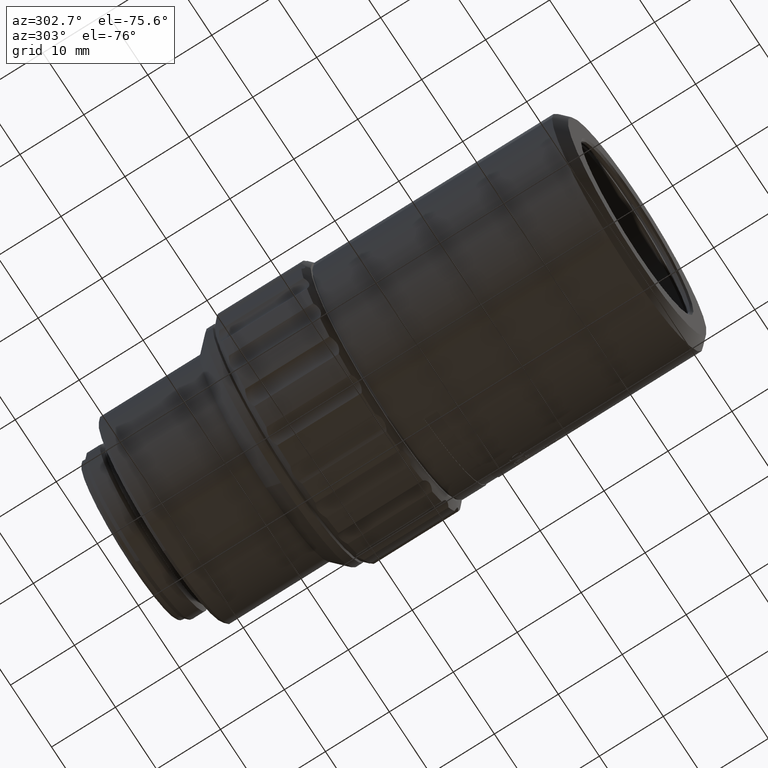
[diagram: clean part render]
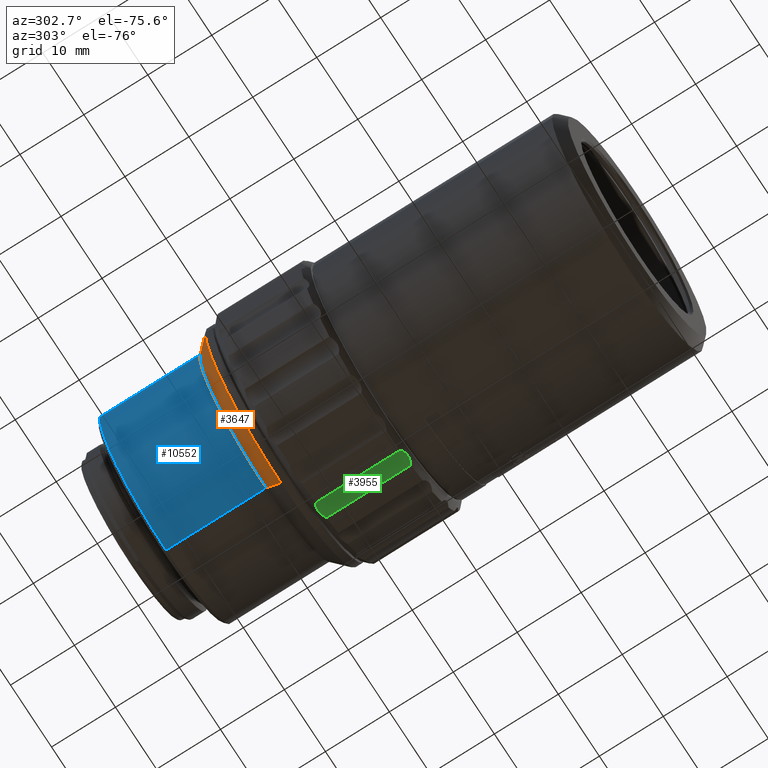
[diagram: same view with three faces highlighted in distinct colors, each labeled with its STEP entity id]
A machine part, auxiliary view with three faces highlighted in distinct colors.
Their STEP definitions:

[orange] entity #3647 — the highlighted conical surface has half-angle 45 deg.
#1270 = AXIS2_PLACEMENT_3D ( 'NONE', #3921, #18951, #17645 ) ;
#2942 = EDGE_CURVE ( 'NONE', #4403, #18064, #17333, .T. ) ;
#3084 = AXIS2_PLACEMENT_3D ( 'NONE', #7701, #15607, #4797 ) ;
#3352 = CARTESIAN_POINT ( 'NONE',  ( 0.000000000000000000, 56.95401716500989409, 16.15000000000000213 ) ) ;
#3584 = CARTESIAN_POINT ( 'NONE',  ( 0.000000000000000000, 54.60401716500999925, 18.49999999999990408 ) ) ;
#3647 = ADVANCED_FACE ( 'NONE', ( #8027 ), #9914, .T. ) ;
#3921 = CARTESIAN_POINT ( 'NONE',  ( 0.000000000000000000, 55.77901716500990403, 0.000000000000000000 ) ) ;
#4403 = VERTEX_POINT ( 'NONE', #3352 ) ;
#4797 = DIRECTION ( 'NONE',  ( 1.000000000000000000, 0.000000000000000000, 0.000000000000000000 ) ) ;
#5024 = AXIS2_PLACEMENT_3D ( 'NONE', #8239, #14337, #18958 ) ;
#5277 = DIRECTION ( 'NONE',  ( -8.659560562354926695E-17, -0.7071067811865480168, -0.7071067811865470176 ) ) ;
#5600 = CIRCLE ( 'NONE', #3084, 18.50000000000000000 ) ;
#6189 = CARTESIAN_POINT ( 'NONE',  ( 1.977804580622975561E-15, 56.95401716500989409, -16.15000000000000213 ) ) ;
#6697 = CARTESIAN_POINT ( 'NONE',  ( -2.121700579522789282E-15, 55.77901716500990403, -17.32499999999999929 ) ) ;
#7701 = CARTESIAN_POINT ( 'NONE',  ( 0.000000000000000000, 54.60401716500999925, 0.000000000000000000 ) ) ;
#8027 = FACE_OUTER_BOUND ( 'NONE', #15687, .T. ) ;
#8239 = CARTESIAN_POINT ( 'NONE',  ( 0.000000000000000000, 56.95401716500989409, 0.000000000000000000 ) ) ;
#8460 = EDGE_CURVE ( 'NONE', #13481, #8736, #11674, .T. ) ;
#8736 = VERTEX_POINT ( 'NONE', #9862 ) ;
#9862 = CARTESIAN_POINT ( 'NONE',  ( -2.265596578422591563E-15, 54.60401716500999925, -18.49999999999990408 ) ) ;
#9914 = CONICAL_SURFACE ( 'NONE', #1270, 17.32499999999999929, 0.7853981633974476129 ) ;
#10173 = EDGE_CURVE ( 'NONE', #13481, #4403, #14281, .T. ) ;
#11112 = DIRECTION ( 'NONE',  ( 0.000000000000000000, -0.7071067811865480168, 0.7071067811865470176 ) ) ;
#11674 = LINE ( 'NONE', #6697, #16868 ) ;
#11924 = VECTOR ( 'NONE', #11112, 1000.000000000000000 ) ;
#12071 = ORIENTED_EDGE ( 'NONE', *, *, #16749, .T. ) ;
#12237 = ORIENTED_EDGE ( 'NONE', *, *, #10173, .F. ) ;
#13481 = VERTEX_POINT ( 'NONE', #6189 ) ;
#13660 = ORIENTED_EDGE ( 'NONE', *, *, #8460, .T. ) ;
#14105 = CARTESIAN_POINT ( 'NONE',  ( 0.000000000000000000, 55.77901716500990403, 17.32499999999999929 ) ) ;
#14281 = CIRCLE ( 'NONE', #5024, 16.15000000000000213 ) ;
#14337 = DIRECTION ( 'NONE',  ( 0.000000000000000000, 1.000000000000000000, 0.000000000000000000 ) ) ;
#15607 = DIRECTION ( 'NONE',  ( 0.000000000000000000, 1.000000000000000000, 0.000000000000000000 ) ) ;
#15687 = EDGE_LOOP ( 'NONE', ( #12237, #13660, #12071, #18781 ) ) ;
#16749 = EDGE_CURVE ( 'NONE', #8736, #18064, #5600, .T. ) ;
#16868 = VECTOR ( 'NONE', #5277, 1000.000000000000000 ) ;
#17333 = LINE ( 'NONE', #14105, #11924 ) ;
#17645 = DIRECTION ( 'NONE',  ( 0.000000000000000000, 0.000000000000000000, 1.000000000000000000 ) ) ;
#18064 = VERTEX_POINT ( 'NONE', #3584 ) ;
#18781 = ORIENTED_EDGE ( 'NONE', *, *, #2942, .F. ) ;
#18951 = DIRECTION ( 'NONE',  ( 0.000000000000000000, -1.000000000000000000, 0.000000000000000000 ) ) ;
#18958 = DIRECTION ( 'NONE',  ( 1.000000000000000000, 0.000000000000000000, 0.000000000000000000 ) ) ;

[blue] entity #10552 — the highlighted cylindrical surface (partial cylindrical patch) has radius 16.15 mm, axis along (0, 1, 0).
#403 = CARTESIAN_POINT ( 'NONE',  ( 1.977804580622975561E-15, 64.77901716500970508, -16.15000000000000213 ) ) ;
#451 = CARTESIAN_POINT ( 'NONE',  ( 0.000000000000000000, 72.60401716500949476, 0.000000000000000000 ) ) ;
#1390 = DIRECTION ( 'NONE',  ( 0.000000000000000000, 1.000000000000000000, 0.000000000000000000 ) ) ;
#1807 = LINE ( 'NONE', #403, #16326 ) ;
#1891 = EDGE_CURVE ( 'NONE', #8362, #13833, #2611, .T. ) ;
#1914 = ORIENTED_EDGE ( 'NONE', *, *, #10173, .T. ) ;
#2302 = FACE_OUTER_BOUND ( 'NONE', #7434, .T. ) ;
#2611 = CIRCLE ( 'NONE', #10278, 16.15000000000000213 ) ;
#3303 = CARTESIAN_POINT ( 'NONE',  ( -1.977804580622980689E-15, 72.60401716500949476, -16.15000000000004121 ) ) ;
#3352 = CARTESIAN_POINT ( 'NONE',  ( 0.000000000000000000, 56.95401716500989409, 16.15000000000000213 ) ) ;
#4403 = VERTEX_POINT ( 'NONE', #3352 ) ;
#4758 = EDGE_CURVE ( 'NONE', #13481, #8362, #1807, .T. ) ;
#5024 = AXIS2_PLACEMENT_3D ( 'NONE', #8239, #14337, #18958 ) ;
#5333 = AXIS2_PLACEMENT_3D ( 'NONE', #9813, #11317, #11515 ) ;
#5392 = ORIENTED_EDGE ( 'NONE', *, *, #13679, .T. ) ;
#6189 = CARTESIAN_POINT ( 'NONE',  ( 1.977804580622975561E-15, 56.95401716500989409, -16.15000000000000213 ) ) ;
#6264 = CARTESIAN_POINT ( 'NONE',  ( 0.000000000000000000, 72.60401716500949476, 16.15000000000004121 ) ) ;
#6386 = CARTESIAN_POINT ( 'NONE',  ( 0.000000000000000000, 64.77901716500970508, 16.15000000000000213 ) ) ;
#7434 = EDGE_LOOP ( 'NONE', ( #12112, #1914, #5392, #10212 ) ) ;
#7883 = LINE ( 'NONE', #6386, #9436 ) ;
#8239 = CARTESIAN_POINT ( 'NONE',  ( 0.000000000000000000, 56.95401716500989409, 0.000000000000000000 ) ) ;
#8362 = VERTEX_POINT ( 'NONE', #3303 ) ;
#9436 = VECTOR ( 'NONE', #15589, 1000.000000000000000 ) ;
#9813 = CARTESIAN_POINT ( 'NONE',  ( 0.000000000000000000, 64.77901716500970508, 0.000000000000000000 ) ) ;
#10173 = EDGE_CURVE ( 'NONE', #13481, #4403, #14281, .T. ) ;
#10212 = ORIENTED_EDGE ( 'NONE', *, *, #1891, .F. ) ;
#10278 = AXIS2_PLACEMENT_3D ( 'NONE', #451, #1390, #16716 ) ;
#10552 = ADVANCED_FACE ( 'NONE', ( #2302 ), #11606, .T. ) ;
#10739 = DIRECTION ( 'NONE',  ( 0.000000000000000000, 1.000000000000000000, 0.000000000000000000 ) ) ;
#11317 = DIRECTION ( 'NONE',  ( 0.000000000000000000, 1.000000000000000000, 0.000000000000000000 ) ) ;
#11515 = DIRECTION ( 'NONE',  ( 0.000000000000000000, 0.000000000000000000, 1.000000000000000000 ) ) ;
#11606 = CYLINDRICAL_SURFACE ( 'NONE', #5333, 16.15000000000000213 ) ;
#12112 = ORIENTED_EDGE ( 'NONE', *, *, #4758, .F. ) ;
#13481 = VERTEX_POINT ( 'NONE', #6189 ) ;
#13679 = EDGE_CURVE ( 'NONE', #4403, #13833, #7883, .T. ) ;
#13833 = VERTEX_POINT ( 'NONE', #6264 ) ;
#14281 = CIRCLE ( 'NONE', #5024, 16.15000000000000213 ) ;
#14337 = DIRECTION ( 'NONE',  ( 0.000000000000000000, 1.000000000000000000, 0.000000000000000000 ) ) ;
#15589 = DIRECTION ( 'NONE',  ( 0.000000000000000000, 1.000000000000000000, 0.000000000000000000 ) ) ;
#16326 = VECTOR ( 'NONE', #10739, 1000.000000000000000 ) ;
#16716 = DIRECTION ( 'NONE',  ( 1.000000000000000000, 0.000000000000000000, 0.000000000000000000 ) ) ;
#18958 = DIRECTION ( 'NONE',  ( 1.000000000000000000, 0.000000000000000000, 0.000000000000000000 ) ) ;

[green] entity #3955 — the highlighted cylindrical surface (edge-blend (fillet) strip) has radius 3 mm, axis along (0, -1, 0).
#107 = DIRECTION ( 'NONE',  ( -1.000000000000000000, 0.000000000000000000, 0.000000000000000000 ) ) ;
#208 = FACE_OUTER_BOUND ( 'NONE', #5707, .T. ) ;
#648 = AXIS2_PLACEMENT_3D ( 'NONE', #17140, #107, #12617 ) ;
#898 = CARTESIAN_POINT ( 'NONE',  ( 2.022065517767446696, -6.289844231537047747, -17.96640933254281336 ) ) ;
#1193 = CARTESIAN_POINT ( 'NONE',  ( 2.060350318173413520, -6.474921670273138474, -17.94117018010625841 ) ) ;
#1199 = CARTESIAN_POINT ( 'NONE',  ( 15.97769583103218061, -5.639566631464856705, -18.15343934317754560 ) ) ;
#1299 = CARTESIAN_POINT ( 'NONE',  ( 15.98657025995889036, -5.753947614641536035, -18.10820618067076637 ) ) ;
#1535 = DIRECTION ( 'NONE',  ( -1.000000000000000000, 0.000000000000000000, 0.000000000000000000 ) ) ;
#1865 = CARTESIAN_POINT ( 'NONE',  ( 2.386565344169410352, -4.643418474017389386, -18.83610004420150119 ) ) ;
#2786 = EDGE_CURVE ( 'NONE', #13689, #9458, #3358, .T. ) ;
#2819 = CARTESIAN_POINT ( 'NONE',  ( 15.58656534416920003, -7.314977359212569752, -17.96805794275550028 ) ) ;
#2916 = CARTESIAN_POINT ( 'NONE',  ( 15.86275120058869348, -6.660098769262447149, -17.92663257329105519 ) ) ;
#3015 = CARTESIAN_POINT ( 'NONE',  ( 15.93442008606695737, -5.388867212402431939, -18.27432181889399487 ) ) ;
#3330 = CYLINDRICAL_SURFACE ( 'NONE', #648, 3.000000000000001332 ) ;
#3358 = B_SPLINE_CURVE_WITH_KNOTS ( 'NONE', 3,
 ( #8812, #19152, #5704, #16222, #11817, #4109, #3920, #17928, #8519, #16417, #4206, #5805, #898, #13400, #1193, #7307, #18030, #4306, #7019, #13109 ),
 .UNSPECIFIED., .F., .F.,
 ( 4, 2, 1, 2, 2, 2, 2, 1, 2, 2, 4 ),
 ( 0.000000000000000000, 0.1250000000000004718, 0.1875000000000009437, 0.2187500000000011657, 0.2500000000000013878, 0.5000000000000027756, 0.6250000000000028866, 0.6875000000000028866, 0.7187500000000028866, 0.7500000000000029976, 1.000000000000000000 ),
 .UNSPECIFIED. ) ;
#3920 = CARTESIAN_POINT ( 'NONE',  ( 2.110379487748546889, -5.148877161298981875, -18.41765823908978561 ) ) ;
#3955 = ADVANCED_FACE ( 'NONE', ( #208 ), #3330, .F. ) ;
#4109 = CARTESIAN_POINT ( 'NONE',  ( 2.129103978428252386, -5.099265890735584783, -18.45088280748576892 ) ) ;
#4206 = CARTESIAN_POINT ( 'NONE',  ( 1.986560428377378784, -5.988695133471479082, -18.03193208815870108 ) ) ;
#4306 = CARTESIAN_POINT ( 'NONE',  ( 2.160308775375718859, -6.839363027247592264, -17.91391697443673792 ) ) ;
#4457 = DIRECTION ( 'NONE',  ( 1.000000000000000000, 0.000000000000000000, 0.000000000000000000 ) ) ;
#4689 = CARTESIAN_POINT ( 'NONE',  ( 2.386565344169410352, -7.314977359212569752, -17.96805794275550028 ) ) ;
#4760 = LINE ( 'NONE', #9065, #6895 ) ;
#5482 = ORIENTED_EDGE ( 'NONE', *, *, #7174, .F. ) ;
#5704 = CARTESIAN_POINT ( 'NONE',  ( 2.265811734793230503, -4.815781660878180936, -18.66840632493519081 ) ) ;
#5707 = EDGE_LOOP ( 'NONE', ( #10472, #12247, #5482, #10511 ) ) ;
#5805 = CARTESIAN_POINT ( 'NONE',  ( 1.995434857302996745, -6.107818678525787526, -18.00129503028270861 ) ) ;
#5810 = CARTESIAN_POINT ( 'NONE',  ( 15.78068829307680687, -6.898475394675132044, -17.92427689232361843 ) ) ;
#6016 = CARTESIAN_POINT ( 'NONE',  ( 15.58656534416920003, -4.643418474017389386, -18.83610004420150119 ) ) ;
#6895 = VECTOR ( 'NONE', #4457, 1000.000000000000000 ) ;
#7019 = CARTESIAN_POINT ( 'NONE',  ( 2.258134561423222664, -7.076688091063160435, -17.92640198938509499 ) ) ;
#7174 = EDGE_CURVE ( 'NONE', #9267, #15816, #11573, .T. ) ;
#7209 = CARTESIAN_POINT ( 'NONE',  ( 15.84402670990794881, -6.719764041579636249, -17.92435104056991690 ) ) ;
#7307 = CARTESIAN_POINT ( 'NONE',  ( 2.075886713532907990, -6.537396464219367154, -17.93503729144758907 ) ) ;
#7312 = CARTESIAN_POINT ( 'NONE',  ( 15.87116704510468956, -6.631909949665386605, -17.92811043536099547 ) ) ;
#7509 = CARTESIAN_POINT ( 'NONE',  ( 15.98655551259031782, -6.106073450088934429, -17.99380906748240960 ) ) ;
#7965 = EDGE_CURVE ( 'NONE', #15816, #13689, #8007, .T. ) ;
#8007 = LINE ( 'NONE', #9154, #15597 ) ;
#8519 = CARTESIAN_POINT ( 'NONE',  ( 2.022082728375486749, -5.413670966225405223, -18.25108346216937250 ) ) ;
#8812 = CARTESIAN_POINT ( 'NONE',  ( 2.386565344169410352, -4.643418474017389386, -18.83610004420150119 ) ) ;
#8818 = CARTESIAN_POINT ( 'NONE',  ( 15.70731895354121299, -7.076964716758598506, -17.93370341329557149 ) ) ;
#9020 = CARTESIAN_POINT ( 'NONE',  ( 15.95104795996742730, -6.347965883786161889, -17.94751264135920721 ) ) ;
#9065 = CARTESIAN_POINT ( 'NONE',  ( 16.48656534416710073, -7.314977359212580410, -17.96805794275550028 ) ) ;
#9154 = CARTESIAN_POINT ( 'NONE',  ( 16.48656534416710073, -4.643418474017389386, -18.83610004420150119 ) ) ;
#9267 = VERTEX_POINT ( 'NONE', #13516 ) ;
#9458 = VERTEX_POINT ( 'NONE', #4689 ) ;
#10472 = ORIENTED_EDGE ( 'NONE', *, *, #2786, .F. ) ;
#10511 = ORIENTED_EDGE ( 'NONE', *, *, #13843, .F. ) ;
#10522 = CARTESIAN_POINT ( 'NONE',  ( 15.81450698492905005, -6.809194788638552431, -17.92228157722847115 ) ) ;
#11069 = CARTESIAN_POINT ( 'NONE',  ( 15.58656534416920003, -4.643418474017389386, -18.83610004420150119 ) ) ;
#11573 = B_SPLINE_CURVE_WITH_KNOTS ( 'NONE', 3,
 ( #2819, #13723, #8818, #5810, #10522, #7209, #2916, #7312, #9020, #7509, #1299, #1199, #13509, #3015, #13404, #19545, #11921, #13617, #19645, #6016 ),
 .UNSPECIFIED., .F., .F.,
 ( 4, 2, 1, 2, 2, 2, 2, 1, 2, 2, 4 ),
 ( 0.000000000000000000, 0.1250000000000028311, 0.1875000000000036082, 0.2187500000000039690, 0.2500000000000043299, 0.5000000000000047740, 0.6250000000000044409, 0.6875000000000038858, 0.7187500000000028866, 0.7500000000000017764, 1.000000000000000000 ),
 .UNSPECIFIED. ) ;
#11817 = CARTESIAN_POINT ( 'NONE',  ( 2.158623703405853966, -5.025698496514696245, -18.50177465069423732 ) ) ;
#11921 = CARTESIAN_POINT ( 'NONE',  ( 15.88844530098056040, -5.224713020633497962, -18.36957781612403195 ) ) ;
#12247 = ORIENTED_EDGE ( 'NONE', *, *, #7965, .F. ) ;
#12617 = DIRECTION ( 'NONE',  ( 0.000000000000000000, -0.9510565162951534202, 0.3090169943749478954 ) ) ;
#13109 = CARTESIAN_POINT ( 'NONE',  ( 2.386565344169410352, -7.314977359212569752, -17.96805794275550028 ) ) ;
#13400 = CARTESIAN_POINT ( 'NONE',  ( 2.038710602268676730, -6.381691705515822655, -17.95173358617627102 ) ) ;
#13404 = CARTESIAN_POINT ( 'NONE',  ( 15.91278037016326330, -5.307233572230978247, -18.32057504221862843 ) ) ;
#13509 = CARTESIAN_POINT ( 'NONE',  ( 15.95106517056776596, -5.471799567020732447, -18.23220815644560133 ) ) ;
#13516 = CARTESIAN_POINT ( 'NONE',  ( 15.58656534416920003, -7.314977359212569752, -17.96805794275550028 ) ) ;
#13617 = CARTESIAN_POINT ( 'NONE',  ( 15.81282191296057249, -4.996375288619897326, -18.51273999063495523 ) ) ;
#13689 = VERTEX_POINT ( 'NONE', #1865 ) ;
#13723 = CARTESIAN_POINT ( 'NONE',  ( 15.65076345274265002, -7.195864791482163625, -17.94723557166958017 ) ) ;
#13843 = EDGE_CURVE ( 'NONE', #9458, #9267, #4760, .T. ) ;
#15597 = VECTOR ( 'NONE', #1535, 1000.000000000000000 ) ;
#15816 = VERTEX_POINT ( 'NONE', #11069 ) ;
#16222 = CARTESIAN_POINT ( 'NONE',  ( 2.192442395257588217, -4.954641785750327543, -18.55586671805866672 ) ) ;
#16417 = CARTESIAN_POINT ( 'NONE',  ( 1.986575175752569589, -5.636578412429078533, -18.14635725250624176 ) ) ;
#17140 = CARTESIAN_POINT ( 'NONE',  ( 16.48656534416710073, -6.798373876248850145, -20.92324335849339789 ) ) ;
#17928 = CARTESIAN_POINT ( 'NONE',  ( 2.101963643233309309, -5.172551060932709888, -18.40228488218217606 ) ) ;
#18030 = CARTESIAN_POINT ( 'NONE',  ( 2.084685387358302666, -6.570485306732705588, -17.93230989372624506 ) ) ;
#19152 = CARTESIAN_POINT ( 'NONE',  ( 2.322367235593223889, -4.727543482916582995, -18.74924178145126419 ) ) ;
#19545 = CARTESIAN_POINT ( 'NONE',  ( 15.89724397480461704, -5.253085580704197177, -18.35233519358893162 ) ) ;
#19645 = CARTESIAN_POINT ( 'NONE',  ( 15.71499612691308911, -4.811713786463095666, -18.66233675241329593 ) ) ;